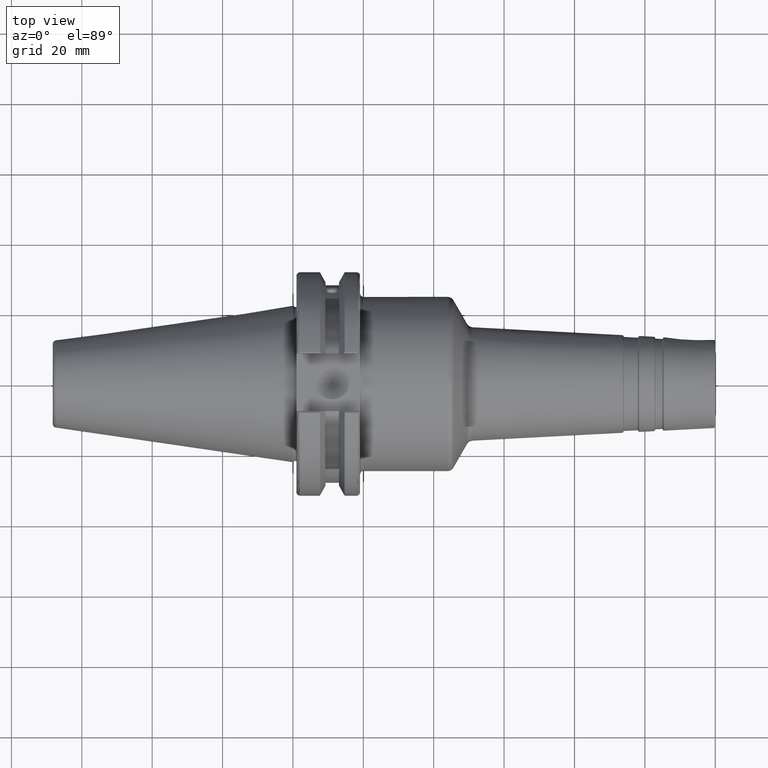
[diagram: clean part render]
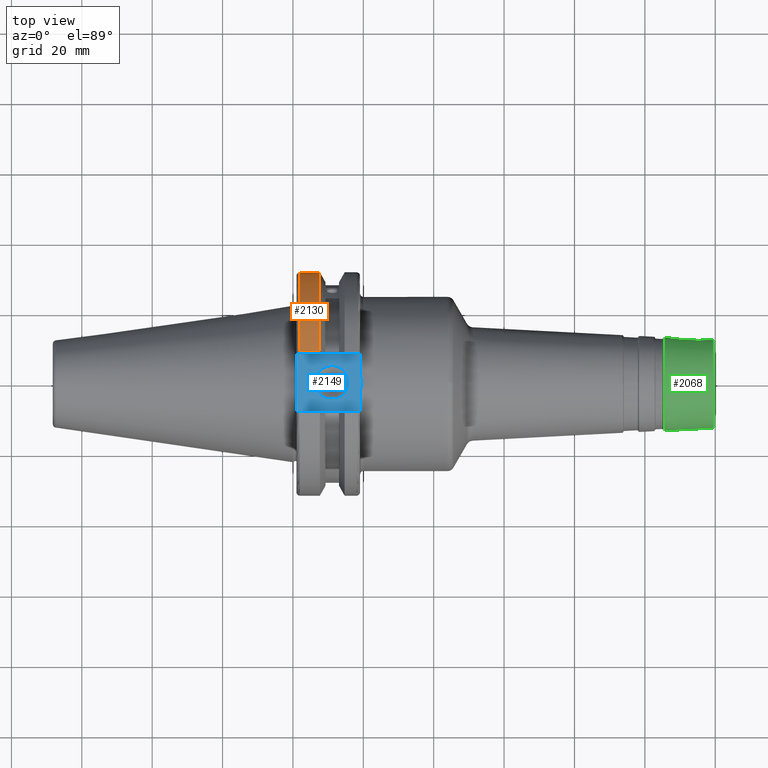
[diagram: same view with three faces highlighted in distinct colors, each labeled with its STEP entity id]
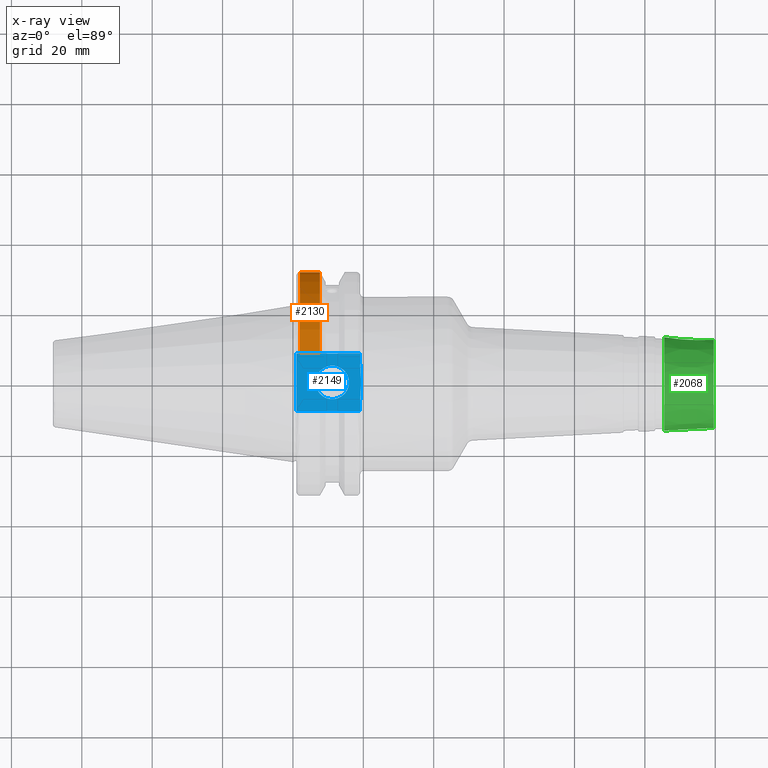
[diagram: x-ray of the same camera — body ghosted, the three highlighted faces saturated]
A machine part, top view with three faces highlighted in distinct colors.
The next image is the same camera in x-ray (body ghosted, the three faces saturated) — at least one of them is partly hidden behind the body in this view.
Their STEP definitions:

[orange] entity #2130 — the highlighted cylindrical surface (partial cylindrical patch) has radius 31.75 mm, axis along (1, 0, 0).
#72=CYLINDRICAL_SURFACE('',#2414,31.75);
#243=LINE('',#4121,#336);
#245=LINE('',#4124,#338);
#336=VECTOR('',#3022,10.);
#338=VECTOR('',#3026,10.);
#449=FACE_OUTER_BOUND('',#566,.T.);
#566=EDGE_LOOP('',(#1861,#1862,#1863,#1864));
#726=CIRCLE('',#2377,31.75);
#742=CIRCLE('',#2412,31.75);
#938=VERTEX_POINT('',#3866);
#939=VERTEX_POINT('',#3870);
#986=VERTEX_POINT('',#4094);
#987=VERTEX_POINT('',#4103);
#1230=EDGE_CURVE('',#938,#939,#726,.T.);
#1299=EDGE_CURVE('',#986,#987,#742,.T.);
#1302=EDGE_CURVE('',#987,#938,#243,.T.);
#1304=EDGE_CURVE('',#939,#986,#245,.T.);
#1861=ORIENTED_EDGE('',*,*,#1299,.F.);
#1862=ORIENTED_EDGE('',*,*,#1304,.F.);
#1863=ORIENTED_EDGE('',*,*,#1230,.F.);
#1864=ORIENTED_EDGE('',*,*,#1302,.F.);
#2130=ADVANCED_FACE('',(#449),#72,.T.);
#2377=AXIS2_PLACEMENT_3D('',#3871,#2917,#2918);
#2412=AXIS2_PLACEMENT_3D('',#4104,#3018,#3019);
#2414=AXIS2_PLACEMENT_3D('',#4123,#3024,#3025);
#2917=DIRECTION('center_axis',(1.,0.,0.));
#2918=DIRECTION('ref_axis',(0.,0.,-1.));
#3018=DIRECTION('center_axis',(-1.,0.,0.));
#3019=DIRECTION('ref_axis',(0.,1.,1.60812264967664E-16));
#3022=DIRECTION('',(1.,0.,0.));
#3024=DIRECTION('center_axis',(1.,0.,0.));
#3025=DIRECTION('ref_axis',(0.,1.,0.));
#3026=DIRECTION('',(-1.,0.,0.));
#3866=CARTESIAN_POINT('',(7.64983323092436,8.67204822802685,-30.5427254764662));
#3870=CARTESIAN_POINT('',(7.64983323092436,8.67204822802685,30.5427254764662));
#3871=CARTESIAN_POINT('Origin',(7.64983323092436,0.,0.));
#4094=CARTESIAN_POINT('',(2.,8.67204822802685,30.5427254764662));
#4103=CARTESIAN_POINT('',(2.,8.67204822802685,-30.5427254764662));
#4104=CARTESIAN_POINT('Origin',(2.,0.,0.));
#4121=CARTESIAN_POINT('',(4.32491661546218,8.67204822802685,-30.5427254764662));
#4123=CARTESIAN_POINT('Origin',(4.32491661546218,0.,0.));
#4124=CARTESIAN_POINT('',(4.32491661546218,8.67204822802685,30.5427254764662));

[blue] entity #2149 — the highlighted planar face has unit normal (0, 0, 1).
#81=B_SPLINE_CURVE_WITH_KNOTS('',3,(#3332,#3333,#3334,#3335,#3336,#3337,
#3338,#3339,#3340,#3341),.UNSPECIFIED.,.F.,.F.,(4,2,2,2,4),(1.28229186042809,
1.47392183654147,1.862003561099,2.25008528565653,2.44171526176991),
 .UNSPECIFIED.);
#129=FACE_BOUND('',#587,.T.);
#162=PLANE('',#2451);
#176=LINE('',#3373,#269);
#190=LINE('',#3550,#283);
#225=LINE('',#3972,#318);
#227=LINE('',#4015,#320);
#238=LINE('',#4077,#331);
#269=VECTOR('',#2677,10.);
#283=VECTOR('',#2771,10.);
#318=VECTOR('',#2974,10.);
#320=VECTOR('',#2984,10.);
#331=VECTOR('',#3005,10.);
#468=FACE_OUTER_BOUND('',#586,.T.);
#586=EDGE_LOOP('',(#1964,#1965,#1966,#1967,#1968,#1969));
#587=EDGE_LOOP('',(#1970,#1971));
#756=CIRCLE('',#2441,4.7625);
#757=CIRCLE('',#2442,4.7625);
#836=VERTEX_POINT('',#3330);
#837=VERTEX_POINT('',#3331);
#843=VERTEX_POINT('',#3372);
#876=VERTEX_POINT('',#3548);
#962=VERTEX_POINT('',#3970);
#968=VERTEX_POINT('',#4014);
#1004=VERTEX_POINT('',#4183);
#1005=VERTEX_POINT('',#4184);
#1095=EDGE_CURVE('',#836,#837,#81,.F.);
#1102=EDGE_CURVE('',#836,#843,#176,.T.);
#1148=EDGE_CURVE('',#876,#837,#190,.T.);
#1263=EDGE_CURVE('',#876,#962,#225,.T.);
#1271=EDGE_CURVE('',#968,#843,#227,.T.);
#1290=EDGE_CURVE('',#968,#962,#238,.T.);
#1329=EDGE_CURVE('',#1004,#1005,#756,.T.);
#1330=EDGE_CURVE('',#1005,#1004,#757,.T.);
#1964=ORIENTED_EDGE('',*,*,#1148,.F.);
#1965=ORIENTED_EDGE('',*,*,#1263,.T.);
#1966=ORIENTED_EDGE('',*,*,#1290,.F.);
#1967=ORIENTED_EDGE('',*,*,#1271,.T.);
#1968=ORIENTED_EDGE('',*,*,#1102,.F.);
#1969=ORIENTED_EDGE('',*,*,#1095,.T.);
#1970=ORIENTED_EDGE('',*,*,#1329,.T.);
#1971=ORIENTED_EDGE('',*,*,#1330,.T.);
#2149=ADVANCED_FACE('',(#468,#129),#162,.T.);
#2441=AXIS2_PLACEMENT_3D('',#4185,#3087,#3088);
#2442=AXIS2_PLACEMENT_3D('',#4186,#3089,#3090);
#2451=AXIS2_PLACEMENT_3D('',#4205,#3109,#3110);
#2677=DIRECTION('',(0.,-1.,0.));
#2771=DIRECTION('',(0.,-1.,0.));
#2974=DIRECTION('',(-1.,0.,0.));
#2984=DIRECTION('',(1.,-1.16558847729675E-16,0.));
#3005=DIRECTION('',(0.,1.,0.));
#3087=DIRECTION('center_axis',(0.,0.,-1.));
#3088=DIRECTION('ref_axis',(1.,0.,0.));
#3089=DIRECTION('center_axis',(0.,0.,-1.));
#3090=DIRECTION('ref_axis',(1.,0.,0.));
#3109=DIRECTION('center_axis',(0.,0.,1.));
#3110=DIRECTION('ref_axis',(1.,0.,0.));
#3330=CARTESIAN_POINT('',(19.05,-6.16948133962652,25.));
#3331=CARTESIAN_POINT('',(19.05,6.16948133962652,25.));
#3332=CARTESIAN_POINT('Ctrl Pts',(19.05,6.16948133962652,25.));
#3333=CARTESIAN_POINT('Ctrl Pts',(19.05,5.53071475258193,25.));
#3334=CARTESIAN_POINT('Ctrl Pts',(19.0917093675371,4.76533047486055,25.));
#3335=CARTESIAN_POINT('Ctrl Pts',(19.2334466867335,2.83816328553263,25.));
#3336=CARTESIAN_POINT('Ctrl Pts',(19.3885621722339,1.29360574852511,25.));
#3337=CARTESIAN_POINT('Ctrl Pts',(19.3885621722339,-1.29360574852511,25.));
#3338=CARTESIAN_POINT('Ctrl Pts',(19.2334466867335,-2.83816328553263,25.));
#3339=CARTESIAN_POINT('Ctrl Pts',(19.0917093675371,-4.76533047486055,25.));
#3340=CARTESIAN_POINT('Ctrl Pts',(19.05,-5.53071475258193,25.));
#3341=CARTESIAN_POINT('Ctrl Pts',(19.05,-6.16948133962652,25.));
#3372=CARTESIAN_POINT('',(19.05,-8.19,25.));
#3373=CARTESIAN_POINT('',(19.05,0.,25.));
#3548=CARTESIAN_POINT('',(19.05,8.19,25.));
#3550=CARTESIAN_POINT('',(19.05,0.,25.));
#3970=CARTESIAN_POINT('',(1.,8.19,25.));
#3972=CARTESIAN_POINT('',(20.05,8.19,25.));
#4014=CARTESIAN_POINT('',(1.,-8.19,25.));
#4015=CARTESIAN_POINT('',(1.,-8.19,25.));
#4077=CARTESIAN_POINT('',(1.,15.875,25.));
#4183=CARTESIAN_POINT('',(15.9385,0.,25.));
#4184=CARTESIAN_POINT('',(6.4135,-5.83238038093927E-16,25.));
#4185=CARTESIAN_POINT('Origin',(11.176,0.,25.));
#4186=CARTESIAN_POINT('Origin',(11.176,0.,25.));
#4205=CARTESIAN_POINT('Origin',(14.62,0.,25.));

[green] entity #2068 — the highlighted conical surface has half-angle 3 deg.
#173=LINE('',#3282,#266);
#266=VECTOR('',#2606,12.8848185972057);
#359=CONICAL_SURFACE('',#2238,12.8848185972057,0.05235987755983);
#387=FACE_OUTER_BOUND('',#493,.T.);
#493=EDGE_LOOP('',(#1447,#1448,#1449,#1450,#1451,#1452,#1453,#1454));
#643=CIRCLE('',#2234,13.2575507230413);
#644=CIRCLE('',#2235,13.2575507230413);
#646=CIRCLE('',#2237,13.2575507230413);
#647=CIRCLE('',#2239,12.5248324840198);
#648=CIRCLE('',#2240,12.5248324840198);
#649=CIRCLE('',#2241,12.5248324840198);
#814=VERTEX_POINT('',#3269);
#815=VERTEX_POINT('',#3270);
#816=VERTEX_POINT('',#3272);
#817=VERTEX_POINT('',#3277);
#818=VERTEX_POINT('',#3278);
#819=VERTEX_POINT('',#3280);
#1065=EDGE_CURVE('',#814,#815,#643,.T.);
#1066=EDGE_CURVE('',#815,#816,#644,.T.);
#1068=EDGE_CURVE('',#816,#814,#646,.T.);
#1069=EDGE_CURVE('',#817,#818,#647,.T.);
#1070=EDGE_CURVE('',#819,#817,#648,.T.);
#1071=EDGE_CURVE('',#819,#815,#173,.T.);
#1072=EDGE_CURVE('',#818,#819,#649,.T.);
#1447=ORIENTED_EDGE('',*,*,#1069,.F.);
#1448=ORIENTED_EDGE('',*,*,#1070,.F.);
#1449=ORIENTED_EDGE('',*,*,#1071,.T.);
#1450=ORIENTED_EDGE('',*,*,#1065,.F.);
#1451=ORIENTED_EDGE('',*,*,#1068,.F.);
#1452=ORIENTED_EDGE('',*,*,#1066,.F.);
#1453=ORIENTED_EDGE('',*,*,#1071,.F.);
#1454=ORIENTED_EDGE('',*,*,#1072,.F.);
#2068=ADVANCED_FACE('',(#387),#359,.T.);
#2234=AXIS2_PLACEMENT_3D('',#3271,#2592,#2593);
#2235=AXIS2_PLACEMENT_3D('',#3273,#2594,#2595);
#2237=AXIS2_PLACEMENT_3D('',#3275,#2598,#2599);
#2238=AXIS2_PLACEMENT_3D('',#3276,#2600,#2601);
#2239=AXIS2_PLACEMENT_3D('',#3279,#2602,#2603);
#2240=AXIS2_PLACEMENT_3D('',#3281,#2604,#2605);
#2241=AXIS2_PLACEMENT_3D('',#3283,#2607,#2608);
#2592=DIRECTION('center_axis',(-1.,0.,0.));
#2593=DIRECTION('ref_axis',(0.,-1.,3.06161699786838E-17));
#2594=DIRECTION('center_axis',(-1.,0.,0.));
#2595=DIRECTION('ref_axis',(0.,-1.,3.06161699786838E-17));
#2598=DIRECTION('center_axis',(-1.,0.,0.));
#2599=DIRECTION('ref_axis',(0.,-1.,3.06161699786838E-17));
#2600=DIRECTION('center_axis',(-1.,0.,0.));
#2601=DIRECTION('ref_axis',(0.,1.,0.));
#2602=DIRECTION('center_axis',(1.,0.,0.));
#2603=DIRECTION('ref_axis',(0.,-1.,3.06161699786839E-17));
#2604=DIRECTION('center_axis',(1.,0.,0.));
#2605=DIRECTION('ref_axis',(0.,-1.,3.06161699786839E-17));
#2606=DIRECTION('',(-0.998629534754574,-0.052335956242944,-6.40930612932372E-18));
#2607=DIRECTION('center_axis',(1.,0.,0.));
#2608=DIRECTION('ref_axis',(0.,-1.,3.06161699786839E-17));
#3269=CARTESIAN_POINT('',(105.545071105762,13.2575507230413,-4.05895426437655E-15));
#3270=CARTESIAN_POINT('',(105.545071105762,-13.2575507230413,-1.62358170575062E-15));
#3271=CARTESIAN_POINT('Origin',(105.545071105762,0.,-2.02947713218828E-15));
#3272=CARTESIAN_POINT('',(105.545071105762,-1.62358170575062E-15,13.2575507230413));
#3273=CARTESIAN_POINT('Origin',(105.545071105762,0.,-2.02947713218828E-15));
#3275=CARTESIAN_POINT('Origin',(105.545071105762,0.,-2.02947713218828E-15));
#3276=CARTESIAN_POINT('Origin',(112.657223746739,0.,0.));
#3277=CARTESIAN_POINT('',(119.526167978121,12.5248324840198,-7.66924800570586E-16));
#3278=CARTESIAN_POINT('',(119.526167978121,-1.53384960114117E-15,12.5248324840198));
#3279=CARTESIAN_POINT('Origin',(119.526167978121,0.,-1.91731200142646E-15));
#3280=CARTESIAN_POINT('',(119.526167978121,-12.5248324840198,-1.53384960114117E-15));
#3281=CARTESIAN_POINT('Origin',(119.526167978121,0.,-1.91731200142646E-15));
#3282=CARTESIAN_POINT('',(112.657223746739,-12.8848185972057,-1.57793518526622E-15));
#3283=CARTESIAN_POINT('Origin',(119.526167978121,0.,-1.91731200142646E-15));